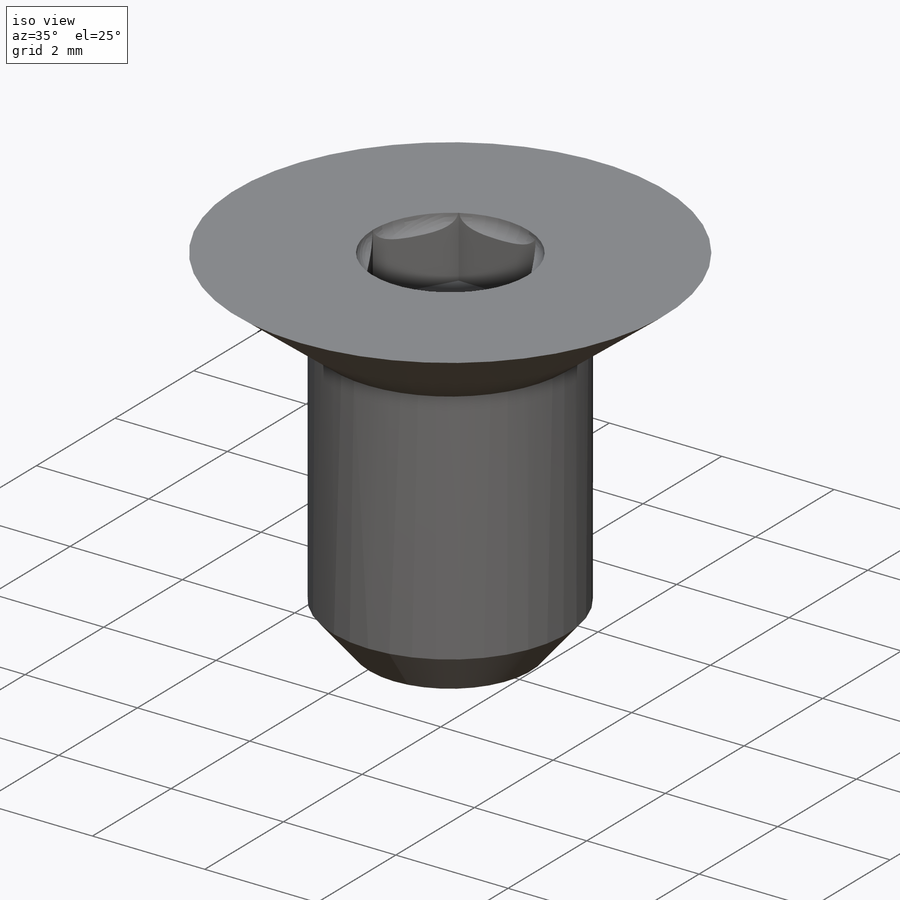
[diagram: iso view]
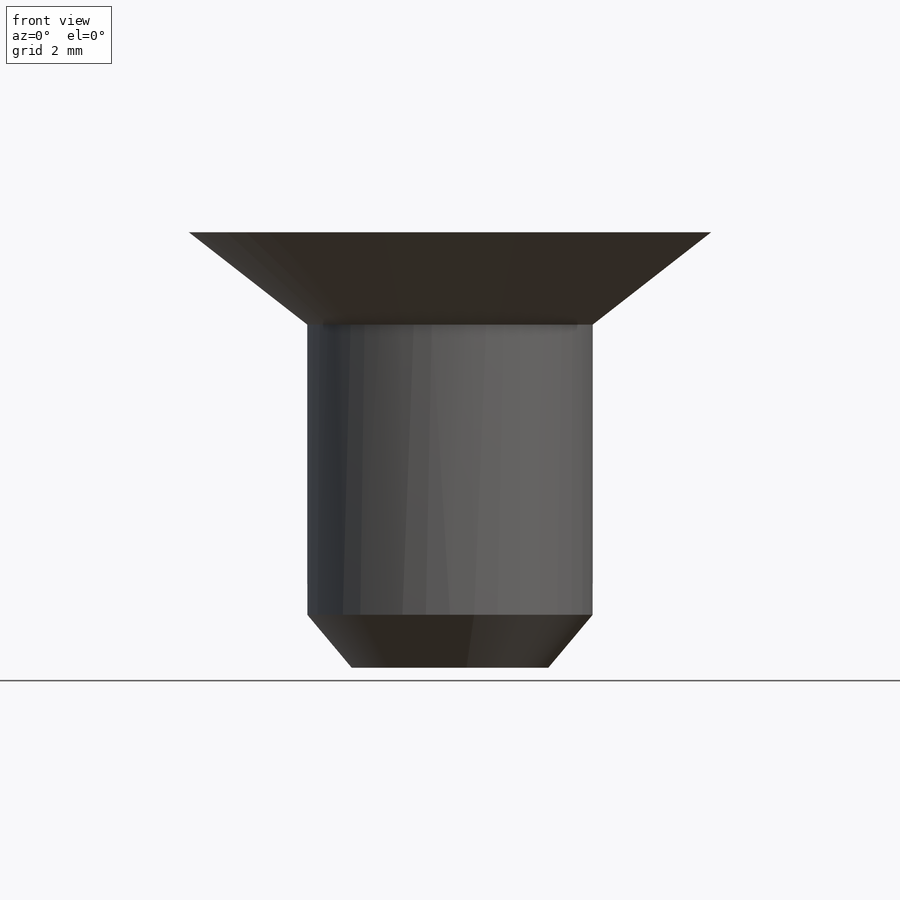
[diagram: front view]
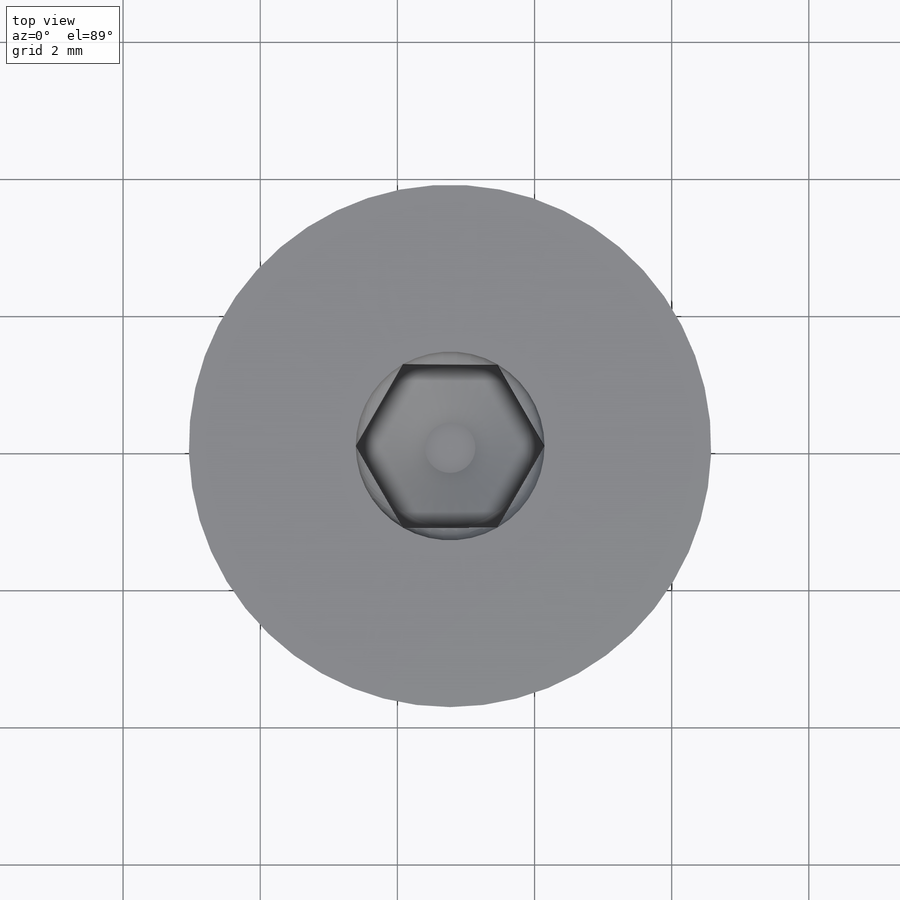
[diagram: top view]
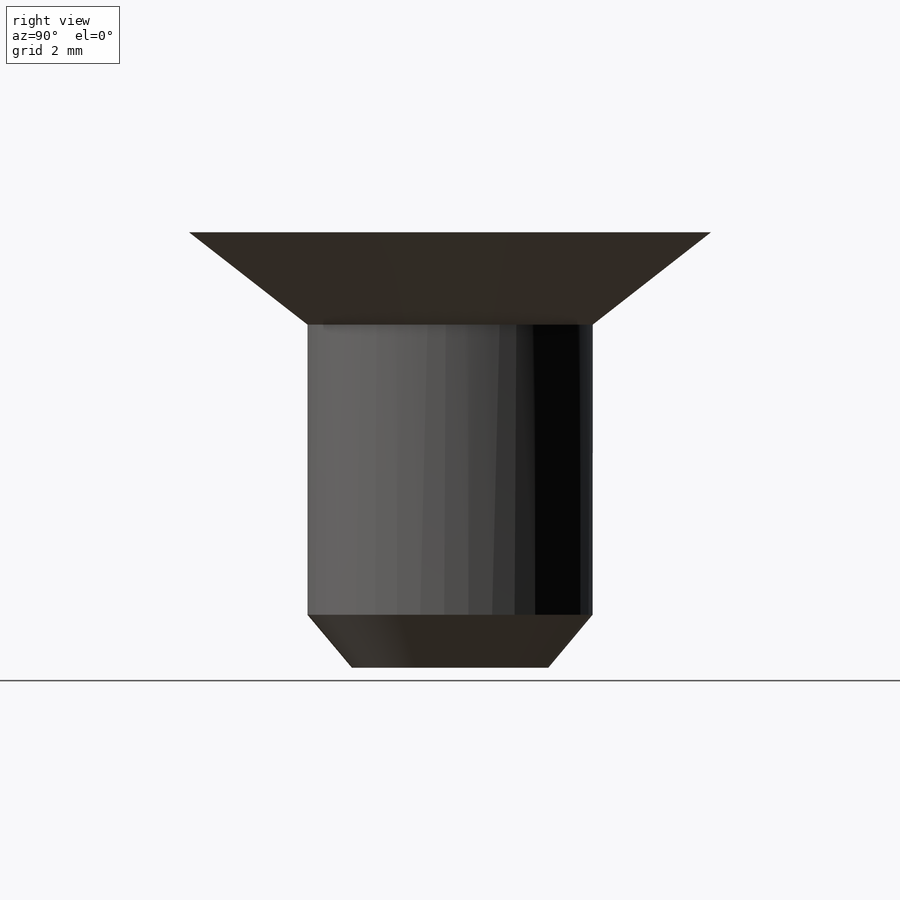
[diagram: right view]
SOLIDWORKS PART (.sldprt)
format: sldprt  version: not decoded by parser v0  size: 229,888 bytes
history: native  units: mm
features: sketch x4, cut_extrude x2, material x1, revolve x1, cut_revolve x1, mirror x1 (+13 scaffold rows collapsed)
feature tree (23):
  scaffold x13  (default folders/planes/origin — collapsed)
  material  "AISI 1020"
  sketch  "Sketch1"  dims[c1.D1=3.8608mm c1.D2=2.0828mm c2.D1=3.8608mm c2.D2=~0.685095mm c3.D2=~136.412674deg c4.D2=2.0828mm c4.D3=2.0828mm c4.D4=3.8608mm c4.D5=1.3462mm c4.D6=5.0038mm c4.D7=~1.15961mm c5.D7=40.0deg c5.D2=2.0828mm c5.D3=3.81mm c5.D1=6.35mm]
  revolve  "Revolve1"  Angle=360deg
  sketch  "Sketch2"  dims[D1=2.3876mm]
  cut_extrude  "Cut-Extrude1"  Depth=1.0922mm
  sketch  "Sketch4"
  cut_extrude  "Cut-Extrude2"  [1 undecoded]
  sketch  "Sketch5"  dims[D2=0.3683mm D1=0.3683mm]
  cut_revolve  "Cut-Revolve1"  Angle=360deg
  mirror  "Mirror1"
decode coverage: 6 of 9 modeling features carry decoded parameters
note: ~ marks probable driven/reference dimensions
note: 1 parameter value undecoded
note: suppression state not decoded; provenance and decode notes live in map.json
